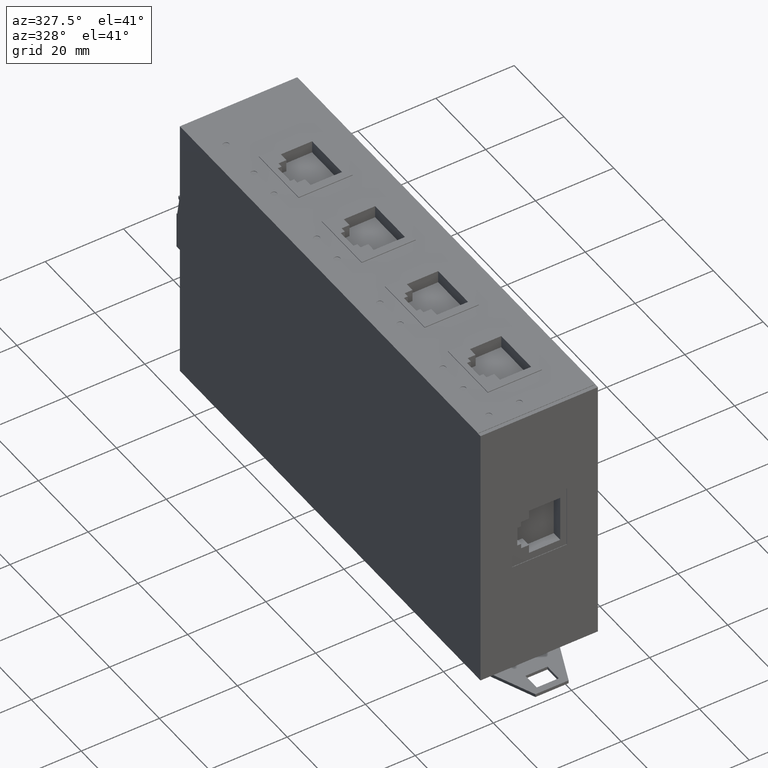
[diagram: clean part render]
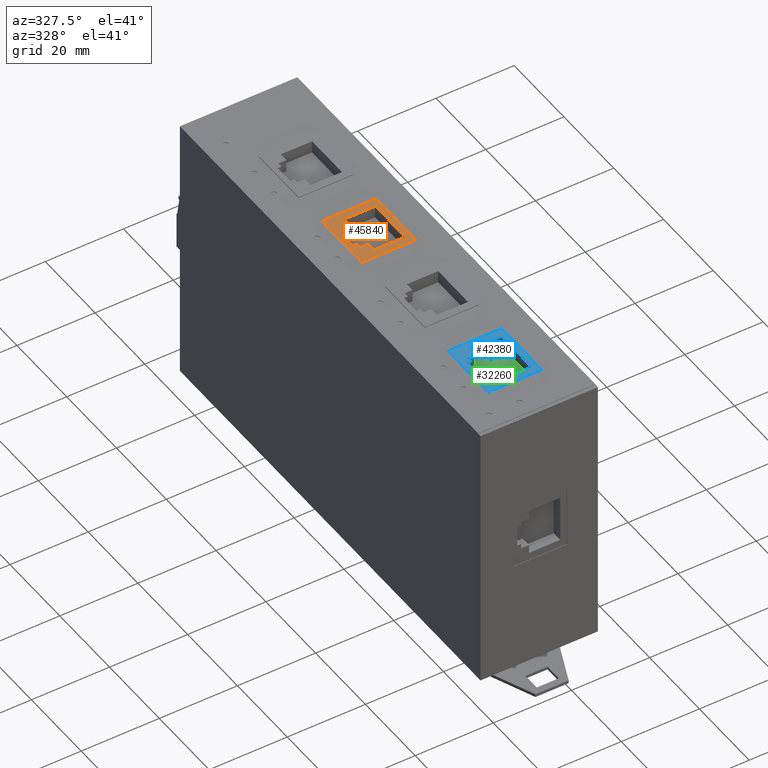
[diagram: same view with three faces highlighted in distinct colors, each labeled with its STEP entity id]
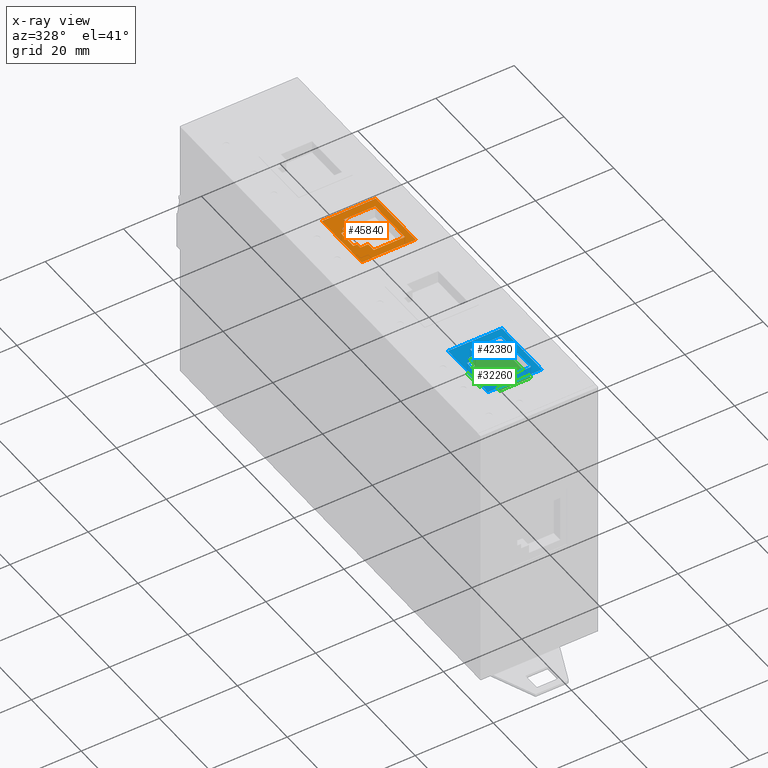
[diagram: x-ray of the same camera — body ghosted, the three highlighted faces saturated]
A machine part, auxiliary view with three faces highlighted in distinct colors.
The next image is the same camera in x-ray (body ghosted, the three faces saturated) — at least one of them is partly hidden behind the body in this view.
Their STEP definitions:

[orange] entity #45840 — the highlighted planar face has unit normal (-0, 0, -1).
#22730=CARTESIAN_POINT('',(-20.4773015873009,9.68789682539686,0.25));
#22740=DIRECTION('',(1.,5.20417042793041E-16,-4.15384957333508E-18));
#22750=VECTOR('',#22740,1.);
#22760=LINE('',#22730,#22750);
#22770=CARTESIAN_POINT('',(-36.7273015873009,9.68789682539685,0.25));
#22780=VERTEX_POINT('',#22770);
#22790=CARTESIAN_POINT('',(-35.7273015873009,9.68789682539685,0.25));
#22800=VERTEX_POINT('',#22790);
#22810=EDGE_CURVE('',#22780,#22800,#22760,.T.);
#23110=CARTESIAN_POINT('',(-36.7273015873009,7.01789682539685,0.25));
#23120=DIRECTION('',(3.46944695195361E-16,1.,1.07852076885685E-32));
#23130=VECTOR('',#23120,1.);
#23140=LINE('',#23110,#23130);
#23150=CARTESIAN_POINT('',(-36.7273015873009,4.68789682539685,0.25));
#23160=VERTEX_POINT('',#23150);
#23170=EDGE_CURVE('',#23160,#22780,#23140,.T.);
#23420=CARTESIAN_POINT('',(-20.4773015873009,4.68789682539684,0.25));
#23430=DIRECTION('',(-1.,3.46944695195361E-16,4.15384957333508E-18));
#23440=VECTOR('',#23430,1.);
#23450=LINE('',#23420,#23440);
#23460=CARTESIAN_POINT('',(-35.7273015873009,4.68789682539685,0.25));
#23470=VERTEX_POINT('',#23460);
#23480=EDGE_CURVE('',#23470,#23160,#23450,.T.);
#23730=CARTESIAN_POINT('',(-35.7273015873009,7.01789682539685,0.25));
#23740=DIRECTION('',(-1.04083408558609E-15,1.,1.6549831985001E-32));
#23750=VECTOR('',#23740,1.);
#23760=LINE('',#23730,#23750);
#23770=CARTESIAN_POINT('',(-35.7273015873009,3.43789682539685,0.25));
#23780=VERTEX_POINT('',#23770);
#23790=EDGE_CURVE('',#23780,#23470,#23760,.T.);
#24040=CARTESIAN_POINT('',(-20.4773015873009,3.43789682539684,0.25));
#24050=DIRECTION('',(-1.,3.46944695195361E-16,4.15384957333508E-18));
#24060=VECTOR('',#24050,1.);
#24070=LINE('',#24040,#24060);
#24080=CARTESIAN_POINT('',(-33.7273015873009,3.43789682539685,0.25));
#24090=VERTEX_POINT('',#24080);
#24100=EDGE_CURVE('',#24090,#23780,#24070,.T.);
#24350=CARTESIAN_POINT('',(-33.7273015873009,7.01789682539685,0.25));
#24360=DIRECTION('',(3.46944695195361E-16,1.,1.07852076885685E-32));
#24370=VECTOR('',#24360,1.);
#24380=LINE('',#24350,#24370);
#24390=CARTESIAN_POINT('',(-33.7273015873009,1.18789682539685,0.25));
#24400=VERTEX_POINT('',#24390);
#24410=EDGE_CURVE('',#24400,#24090,#24380,.T.);
#24660=CARTESIAN_POINT('',(-20.4773015873009,1.18789682539684,0.25));
#24670=DIRECTION('',(-1.,3.46944695195361E-16,4.15384957333508E-18));
#24680=VECTOR('',#24670,1.);
#24690=LINE('',#24660,#24680);
#24700=CARTESIAN_POINT('',(-25.7273015873009,1.18789682539684,0.25));
#24710=VERTEX_POINT('',#24700);
#24720=EDGE_CURVE('',#24710,#24400,#24690,.T.);
#24970=CARTESIAN_POINT('',(-25.7273015873009,7.01789682539685,0.25));
#24980=DIRECTION('',(-2.1350442781253E-16,-1.,-1.13394984863024E-32));
#24990=VECTOR('',#24980,1.);
#25000=LINE('',#24970,#24990);
#25010=CARTESIAN_POINT('',(-25.7273015873009,13.1878968253968,0.25));
#25020=VERTEX_POINT('',#25010);
#25030=EDGE_CURVE('',#25020,#24710,#25000,.T.);
#25280=CARTESIAN_POINT('',(-20.4773015873009,13.1878968253968,0.25));
#25290=DIRECTION('',(1.,-3.46944695195361E-16,-4.15384957333508E-18));
#25300=VECTOR('',#25290,1.);
#25310=LINE('',#25280,#25300);
#25320=CARTESIAN_POINT('',(-33.7273015873009,13.1878968253968,0.25));
#25330=VERTEX_POINT('',#25320);
#25340=EDGE_CURVE('',#25330,#25020,#25310,.T.);
#25590=CARTESIAN_POINT('',(-33.7273015873009,7.01789682539685,0.25));
#25600=DIRECTION('',(3.46944695195361E-16,1.,1.07852076885685E-32));
#25610=VECTOR('',#25600,1.);
#25620=LINE('',#25590,#25610);
#25630=CARTESIAN_POINT('',(-33.7273015873009,10.9378968253968,0.25));
#25640=VERTEX_POINT('',#25630);
#25650=EDGE_CURVE('',#25640,#25330,#25620,.T.);
#25900=CARTESIAN_POINT('',(-20.4773015873009,10.9378968253968,0.25));
#25910=DIRECTION('',(1.,-3.46944695195361E-16,-4.15384957333508E-18));
#25920=VECTOR('',#25910,1.);
#25930=LINE('',#25900,#25920);
#25940=CARTESIAN_POINT('',(-35.7273015873009,10.9378968253968,0.25));
#25950=VERTEX_POINT('',#25940);
#25960=EDGE_CURVE('',#25950,#25640,#25930,.T.);
#26210=CARTESIAN_POINT('',(-35.7273015873009,7.01789682539685,0.25));
#26220=DIRECTION('',(3.46944695195361E-16,1.,1.07852076885685E-32));
#26230=VECTOR('',#26220,1.);
#26240=LINE('',#26210,#26230);
#26250=EDGE_CURVE('',#22800,#25950,#26240,.T.);
#42130=CARTESIAN_POINT('',(-20.4773015873009,24.5178968253968,0.25));
#42140=DIRECTION('',(-4.15384957333508E-18,1.22263637626766E-32,-1.));
#42150=DIRECTION('',(-3.46944695195361E-16,-1.,-1.07852076885685E-32));
#42160=AXIS2_PLACEMENT_3D('',#42130,#42140,#42150);
#42170=PLANE('',#42160);
#42930=CARTESIAN_POINT('',(-38.0773015873009,15.1878968253968,0.25));
#42940=VERTEX_POINT('',#42930);
#42970=CARTESIAN_POINT('',(-38.0773015873009,7.01789682539685,0.25));
#42980=DIRECTION('',(7.35943292838645E-17,-1.,-1.25320635359723E-32));
#42990=VECTOR('',#42980,1.);
#43000=LINE('',#42970,#42990);
#43010=CARTESIAN_POINT('',(-38.0773015873009,-0.812103174603154,0.25));
#43020=VERTEX_POINT('',#43010);
#43030=EDGE_CURVE('',#42940,#43020,#43000,.T.);
#43660=CARTESIAN_POINT('',(-20.4773015873009,-0.81210317460316,0.25));
#43670=DIRECTION('',(1.,-3.46944695195361E-16,-4.15384957333508E-18));
#43680=VECTOR('',#43670,1.);
#43690=LINE('',#43660,#43680);
#43700=CARTESIAN_POINT('',(-24.2773015873009,-0.812103174603159,0.25));
#43710=VERTEX_POINT('',#43700);
#43720=EDGE_CURVE('',#43020,#43710,#43690,.T.);
#45520=CARTESIAN_POINT('',(-20.4773015873009,15.1878968253968,0.25));
#45530=DIRECTION('',(-1.,3.46944695195361E-16,4.15384957333508E-18));
#45540=VECTOR('',#45530,1.);
#45550=LINE('',#45520,#45540);
#45560=CARTESIAN_POINT('',(-24.2773015873009,15.1878968253968,0.25));
#45570=VERTEX_POINT('',#45560);
#45580=EDGE_CURVE('',#45570,#42940,#45550,.T.);
#45590=ORIENTED_EDGE('',*,*,#45580,.T.);
#45600=CARTESIAN_POINT('',(-24.2773015873009,7.01789682539685,0.25));
#45610=DIRECTION('',(3.46944695195361E-16,1.,1.07852076885685E-32));
#45620=VECTOR('',#45610,1.);
#45630=LINE('',#45600,#45620);
#45640=EDGE_CURVE('',#43710,#45570,#45630,.T.);
#45650=ORIENTED_EDGE('',*,*,#45640,.T.);
#45660=ORIENTED_EDGE('',*,*,#43720,.T.);
#45670=ORIENTED_EDGE('',*,*,#43030,.T.);
#45680=EDGE_LOOP('',(#45670,#45660,#45650,#45590));
#45690=FACE_OUTER_BOUND('',#45680,.T.);
#45700=ORIENTED_EDGE('',*,*,#23480,.T.);
#45710=ORIENTED_EDGE('',*,*,#23790,.T.);
#45720=ORIENTED_EDGE('',*,*,#24100,.T.);
#45730=ORIENTED_EDGE('',*,*,#24410,.T.);
#45740=ORIENTED_EDGE('',*,*,#24720,.T.);
#45750=ORIENTED_EDGE('',*,*,#25030,.T.);
#45760=ORIENTED_EDGE('',*,*,#25340,.T.);
#45770=ORIENTED_EDGE('',*,*,#25650,.T.);
#45780=ORIENTED_EDGE('',*,*,#25960,.T.);
#45790=ORIENTED_EDGE('',*,*,#26250,.T.);
#45800=ORIENTED_EDGE('',*,*,#22810,.T.);
#45810=ORIENTED_EDGE('',*,*,#23170,.T.);
#45820=EDGE_LOOP('',(#45810,#45800,#45790,#45780,#45770,#45760,#45750,
#45740,#45730,#45720,#45710,#45700));
#45830=FACE_BOUND('',#45820,.T.);
#45840=ADVANCED_FACE('',(#45690,#45830),#42170,.F.);

[blue] entity #42380 — the highlighted planar face has unit normal (-0, 0, -1).
#32390=CARTESIAN_POINT('',(-20.4773015873009,-37.4721031746032,0.25));
#32400=DIRECTION('',(1.,-3.46944695195361E-16,-4.15384957333508E-18));
#32410=VECTOR('',#32400,1.);
#32420=LINE('',#32390,#32410);
#32430=CARTESIAN_POINT('',(-33.7273015873009,-37.4721031746031,0.25));
#32440=VERTEX_POINT('',#32430);
#32450=CARTESIAN_POINT('',(-25.7273015873009,-37.4721031746032,0.25));
#32460=VERTEX_POINT('',#32450);
#32470=EDGE_CURVE('',#32440,#32460,#32420,.T.);
#32770=CARTESIAN_POINT('',(-33.7273015873009,7.01789682539685,0.25));
#32780=DIRECTION('',(3.46944695195361E-16,1.,1.07852076885685E-32));
#32790=VECTOR('',#32780,1.);
#32800=LINE('',#32770,#32790);
#32810=CARTESIAN_POINT('',(-33.7273015873009,-39.7221031746031,0.25));
#32820=VERTEX_POINT('',#32810);
#32830=EDGE_CURVE('',#32820,#32440,#32800,.T.);
#33080=CARTESIAN_POINT('',(-20.4773015873009,-39.7221031746031,0.25));
#33090=DIRECTION('',(1.,-3.46944695195361E-16,-4.15384957333508E-18));
#33100=VECTOR('',#33090,1.);
#33110=LINE('',#33080,#33100);
#33120=CARTESIAN_POINT('',(-35.7273015873009,-39.7221031746031,0.25));
#33130=VERTEX_POINT('',#33120);
#33140=EDGE_CURVE('',#33130,#32820,#33110,.T.);
#33390=CARTESIAN_POINT('',(-35.7273015873009,7.01789682539685,0.25));
#33400=DIRECTION('',(3.46944695195361E-16,1.,1.07852076885685E-32));
#33410=VECTOR('',#33400,1.);
#33420=LINE('',#33390,#33410);
#33430=CARTESIAN_POINT('',(-35.7273015873009,-40.9721031746031,0.25));
#33440=VERTEX_POINT('',#33430);
#33450=EDGE_CURVE('',#33440,#33130,#33420,.T.);
#33700=CARTESIAN_POINT('',(-20.4773015873009,-40.9721031746031,0.25));
#33710=DIRECTION('',(1.,5.20417042793041E-16,-4.15384957333508E-18));
#33720=VECTOR('',#33710,1.);
#33730=LINE('',#33700,#33720);
#33740=CARTESIAN_POINT('',(-36.7273015873009,-40.9721031746031,0.25));
#33750=VERTEX_POINT('',#33740);
#33760=EDGE_CURVE('',#33750,#33440,#33730,.T.);
#34010=CARTESIAN_POINT('',(-36.7273015873009,7.01789682539685,0.25));
#34020=DIRECTION('',(3.46944695195361E-16,1.,1.07852076885685E-32));
#34030=VECTOR('',#34020,1.);
#34040=LINE('',#34010,#34030);
#34050=CARTESIAN_POINT('',(-36.7273015873009,-45.9721031746031,0.25));
#34060=VERTEX_POINT('',#34050);
#34070=EDGE_CURVE('',#34060,#33750,#34040,.T.);
#34320=CARTESIAN_POINT('',(-20.4773015873009,-45.9721031746031,0.25));
#34330=DIRECTION('',(-1.,3.46944695195361E-16,4.15384957333508E-18));
#34340=VECTOR('',#34330,1.);
#34350=LINE('',#34320,#34340);
#34360=CARTESIAN_POINT('',(-35.7273015873009,-45.9721031746031,0.25));
#34370=VERTEX_POINT('',#34360);
#34380=EDGE_CURVE('',#34370,#34060,#34350,.T.);
#34630=CARTESIAN_POINT('',(-35.727301587301,7.01789682539685,0.25));
#34640=DIRECTION('',(-1.04083408558609E-15,1.,1.6549831985001E-32));
#34650=VECTOR('',#34640,1.);
#34660=LINE('',#34630,#34650);
#34670=CARTESIAN_POINT('',(-35.7273015873009,-47.2221031746031,0.25));
#34680=VERTEX_POINT('',#34670);
#34690=EDGE_CURVE('',#34680,#34370,#34660,.T.);
#34940=CARTESIAN_POINT('',(-20.4773015873009,-47.2221031746031,0.25));
#34950=DIRECTION('',(-1.,3.46944695195361E-16,4.15384957333508E-18));
#34960=VECTOR('',#34950,1.);
#34970=LINE('',#34940,#34960);
#34980=CARTESIAN_POINT('',(-33.7273015873009,-47.2221031746031,0.25));
#34990=VERTEX_POINT('',#34980);
#35000=EDGE_CURVE('',#34990,#34680,#34970,.T.);
#35250=CARTESIAN_POINT('',(-33.7273015873009,7.01789682539685,0.25));
#35260=DIRECTION('',(3.46944695195361E-16,1.,1.07852076885685E-32));
#35270=VECTOR('',#35260,1.);
#35280=LINE('',#35250,#35270);
#35290=CARTESIAN_POINT('',(-33.7273015873009,-49.4721031746031,0.25));
#35300=VERTEX_POINT('',#35290);
#35310=EDGE_CURVE('',#35300,#34990,#35280,.T.);
#35560=CARTESIAN_POINT('',(-20.4773015873009,-49.4721031746031,0.25));
#35570=DIRECTION('',(-1.,3.46944695195361E-16,4.15384957333508E-18));
#35580=VECTOR('',#35570,1.);
#35590=LINE('',#35560,#35580);
#35600=CARTESIAN_POINT('',(-25.7273015873009,-49.4721031746031,0.25));
#35610=VERTEX_POINT('',#35600);
#35620=EDGE_CURVE('',#35610,#35300,#35590,.T.);
#35870=CARTESIAN_POINT('',(-25.7273015873009,7.01789682539685,0.25));
#35880=DIRECTION('',(-2.1350442781253E-16,-1.,-1.13394984863024E-32));
#35890=VECTOR('',#35880,1.);
#35900=LINE('',#35870,#35890);
#35910=EDGE_CURVE('',#32460,#35610,#35900,.T.);
#40980=CARTESIAN_POINT('',(-38.0773015873009,-35.4721031746031,0.25));
#40990=VERTEX_POINT('',#40980);
#41020=CARTESIAN_POINT('',(-38.0773015873009,7.01789682539685,0.25));
#41030=DIRECTION('',(7.35943292838645E-17,-1.,-1.25320635359723E-32));
#41040=VECTOR('',#41030,1.);
#41050=LINE('',#41020,#41040);
#41060=CARTESIAN_POINT('',(-38.0773015873009,-51.4721031746031,0.25));
#41070=VERTEX_POINT('',#41060);
#41080=EDGE_CURVE('',#40990,#41070,#41050,.T.);
#41330=CARTESIAN_POINT('',(-20.477301587301,-51.4721031746031,0.25));
#41340=DIRECTION('',(1.,-3.46944695195361E-16,-4.15384957333508E-18));
#41350=VECTOR('',#41340,1.);
#41360=LINE('',#41330,#41350);
#41370=CARTESIAN_POINT('',(-24.2773015873009,-51.4721031746031,0.25));
#41380=VERTEX_POINT('',#41370);
#41390=EDGE_CURVE('',#41070,#41380,#41360,.T.);
#41640=CARTESIAN_POINT('',(-24.2773015873009,7.01789682539685,0.25));
#41650=DIRECTION('',(3.46944695195361E-16,1.,1.07852076885685E-32));
#41660=VECTOR('',#41650,1.);
#41670=LINE('',#41640,#41660);
#41680=CARTESIAN_POINT('',(-24.2773015873009,-35.4721031746031,0.25));
#41690=VERTEX_POINT('',#41680);
#41700=EDGE_CURVE('',#41380,#41690,#41670,.T.);
#41950=CARTESIAN_POINT('',(-20.4773015873009,-35.4721031746031,0.25));
#41960=DIRECTION('',(-1.,3.46944695195361E-16,4.15384957333508E-18));
#41970=VECTOR('',#41960,1.);
#41980=LINE('',#41950,#41970);
#41990=EDGE_CURVE('',#41690,#40990,#41980,.T.);
#42130=CARTESIAN_POINT('',(-20.4773015873009,24.5178968253968,0.25));
#42140=DIRECTION('',(-4.15384957333508E-18,1.22263637626766E-32,-1.));
#42150=DIRECTION('',(-3.46944695195361E-16,-1.,-1.07852076885685E-32));
#42160=AXIS2_PLACEMENT_3D('',#42130,#42140,#42150);
#42170=PLANE('',#42160);
#42180=ORIENTED_EDGE('',*,*,#41990,.T.);
#42190=ORIENTED_EDGE('',*,*,#41700,.T.);
#42200=ORIENTED_EDGE('',*,*,#41390,.T.);
#42210=ORIENTED_EDGE('',*,*,#41080,.T.);
#42220=EDGE_LOOP('',(#42210,#42200,#42190,#42180));
#42230=FACE_OUTER_BOUND('',#42220,.T.);
#42240=ORIENTED_EDGE('',*,*,#34380,.T.);
#42250=ORIENTED_EDGE('',*,*,#34690,.T.);
#42260=ORIENTED_EDGE('',*,*,#35000,.T.);
#42270=ORIENTED_EDGE('',*,*,#35310,.T.);
#42280=ORIENTED_EDGE('',*,*,#35620,.T.);
#42290=ORIENTED_EDGE('',*,*,#35910,.T.);
#42300=ORIENTED_EDGE('',*,*,#32470,.T.);
#42310=ORIENTED_EDGE('',*,*,#32830,.T.);
#42320=ORIENTED_EDGE('',*,*,#33140,.T.);
#42330=ORIENTED_EDGE('',*,*,#33450,.T.);
#42340=ORIENTED_EDGE('',*,*,#33760,.T.);
#42350=ORIENTED_EDGE('',*,*,#34070,.T.);
#42360=EDGE_LOOP('',(#42350,#42340,#42330,#42320,#42310,#42300,#42290,
#42280,#42270,#42260,#42250,#42240));
#42370=FACE_BOUND('',#42360,.T.);
#42380=ADVANCED_FACE('',(#42230,#42370),#42170,.F.);

[green] entity #32260 — the highlighted planar face has unit normal (0, 0, 1).
#31230=CARTESIAN_POINT('',(-32.0223015873009,-2.22710317460317,-2.8984))
;
#31240=DIRECTION('',(0.,0.,1.));
#31250=DIRECTION('',(1.,0.,0.));
#31260=AXIS2_PLACEMENT_3D('',#31230,#31240,#31250);
#31270=PLANE('',#31260);
#31280=CARTESIAN_POINT('',(-36.7273015873009,0.,-2.8984));
#31290=DIRECTION('',(-3.46944695195361E-16,-1.,0.));
#31300=VECTOR('',#31290,1.);
#31310=LINE('',#31280,#31300);
#31320=CARTESIAN_POINT('',(-36.7273015873009,-40.9721031746031,-2.8984))
;
#31330=VERTEX_POINT('',#31320);
#31340=CARTESIAN_POINT('',(-36.7273015873009,-45.9721031746031,-2.8984))
;
#31350=VERTEX_POINT('',#31340);
#31360=EDGE_CURVE('',#31330,#31350,#31310,.T.);
#31370=ORIENTED_EDGE('',*,*,#31360,.T.);
#31380=CARTESIAN_POINT('',(0.,-40.9721031746031,-2.8984));
#31390=DIRECTION('',(-1.,-5.20417042793041E-16,0.));
#31400=VECTOR('',#31390,1.);
#31410=LINE('',#31380,#31400);
#31420=CARTESIAN_POINT('',(-35.7273015873009,-40.9721031746031,-2.8984))
;
#31430=VERTEX_POINT('',#31420);
#31440=EDGE_CURVE('',#31430,#31330,#31410,.T.);
#31450=ORIENTED_EDGE('',*,*,#31440,.T.);
#31460=CARTESIAN_POINT('',(-35.7273015873009,0.,-2.8984));
#31470=DIRECTION('',(-3.46944695195361E-16,-1.,0.));
#31480=VECTOR('',#31470,1.);
#31490=LINE('',#31460,#31480);
#31500=CARTESIAN_POINT('',(-35.7273015873009,-39.7221031746031,-2.8984))
;
#31510=VERTEX_POINT('',#31500);
#31520=EDGE_CURVE('',#31510,#31430,#31490,.T.);
#31530=ORIENTED_EDGE('',*,*,#31520,.T.);
#31540=CARTESIAN_POINT('',(0.,-39.7221031746032,-2.8984));
#31550=DIRECTION('',(-1.,3.46944695195361E-16,0.));
#31560=VECTOR('',#31550,1.);
#31570=LINE('',#31540,#31560);
#31580=CARTESIAN_POINT('',(-33.7273015873009,-39.7221031746031,-2.8984))
;
#31590=VERTEX_POINT('',#31580);
#31600=EDGE_CURVE('',#31590,#31510,#31570,.T.);
#31610=ORIENTED_EDGE('',*,*,#31600,.T.);
#31620=CARTESIAN_POINT('',(-33.7273015873009,0.,-2.8984));
#31630=DIRECTION('',(-3.46944695195361E-16,-1.,0.));
#31640=VECTOR('',#31630,1.);
#31650=LINE('',#31620,#31640);
#31660=CARTESIAN_POINT('',(-33.7273015873009,-37.4721031746031,-2.8984))
;
#31670=VERTEX_POINT('',#31660);
#31680=EDGE_CURVE('',#31670,#31590,#31650,.T.);
#31690=ORIENTED_EDGE('',*,*,#31680,.T.);
#31700=CARTESIAN_POINT('',(0.,-37.4721031746032,-2.8984));
#31710=DIRECTION('',(-1.,3.46944695195361E-16,0.));
#31720=VECTOR('',#31710,1.);
#31730=LINE('',#31700,#31720);
#31740=CARTESIAN_POINT('',(-25.7273015873009,-37.4721031746031,-2.8984))
;
#31750=VERTEX_POINT('',#31740);
#31760=EDGE_CURVE('',#31750,#31670,#31730,.T.);
#31770=ORIENTED_EDGE('',*,*,#31760,.T.);
#31780=CARTESIAN_POINT('',(-25.7273015873009,0.,-2.8984));
#31790=DIRECTION('',(2.1350442781253E-16,1.,0.));
#31800=VECTOR('',#31790,1.);
#31810=LINE('',#31780,#31800);
#31820=CARTESIAN_POINT('',(-25.7273015873009,-49.4721031746031,-2.8984))
;
#31830=VERTEX_POINT('',#31820);
#31840=EDGE_CURVE('',#31830,#31750,#31810,.T.);
#31850=ORIENTED_EDGE('',*,*,#31840,.T.);
#31860=CARTESIAN_POINT('',(0.,-49.4721031746031,-2.8984));
#31870=DIRECTION('',(1.,-3.46944695195361E-16,0.));
#31880=VECTOR('',#31870,1.);
#31890=LINE('',#31860,#31880);
#31900=CARTESIAN_POINT('',(-33.7273015873009,-49.4721031746031,-2.8984))
;
#31910=VERTEX_POINT('',#31900);
#31920=EDGE_CURVE('',#31910,#31830,#31890,.T.);
#31930=ORIENTED_EDGE('',*,*,#31920,.T.);
#31940=CARTESIAN_POINT('',(-33.7273015873009,0.,-2.8984));
#31950=DIRECTION('',(-3.46944695195361E-16,-1.,0.));
#31960=VECTOR('',#31950,1.);
#31970=LINE('',#31940,#31960);
#31980=CARTESIAN_POINT('',(-33.7273015873009,-47.2221031746031,-2.8984))
;
#31990=VERTEX_POINT('',#31980);
#32000=EDGE_CURVE('',#31990,#31910,#31970,.T.);
#32010=ORIENTED_EDGE('',*,*,#32000,.T.);
#32020=CARTESIAN_POINT('',(0.,-47.2221031746032,-2.8984));
#32030=DIRECTION('',(1.,-3.46944695195361E-16,0.));
#32040=VECTOR('',#32030,1.);
#32050=LINE('',#32020,#32040);
#32060=CARTESIAN_POINT('',(-35.7273015873009,-47.2221031746031,-2.8984))
;
#32070=VERTEX_POINT('',#32060);
#32080=EDGE_CURVE('',#32070,#31990,#32050,.T.);
#32090=ORIENTED_EDGE('',*,*,#32080,.T.);
#32100=CARTESIAN_POINT('',(-35.727301587301,0.,-2.8984));
#32110=DIRECTION('',(1.04083408558609E-15,-1.,0.));
#32120=VECTOR('',#32110,1.);
#32130=LINE('',#32100,#32120);
#32140=CARTESIAN_POINT('',(-35.7273015873009,-45.9721031746031,-2.8984))
;
#32150=VERTEX_POINT('',#32140);
#32160=EDGE_CURVE('',#32150,#32070,#32130,.T.);
#32170=ORIENTED_EDGE('',*,*,#32160,.T.);
#32180=CARTESIAN_POINT('',(0.,-45.9721031746032,-2.8984));
#32190=DIRECTION('',(1.,-3.46944695195361E-16,0.));
#32200=VECTOR('',#32190,1.);
#32210=LINE('',#32180,#32200);
#32220=EDGE_CURVE('',#31350,#32150,#32210,.T.);
#32230=ORIENTED_EDGE('',*,*,#32220,.T.);
#32240=EDGE_LOOP('',(#32230,#32170,#32090,#32010,#31930,#31850,#31770,
#31690,#31610,#31530,#31450,#31370));
#32250=FACE_OUTER_BOUND('',#32240,.T.);
#32260=ADVANCED_FACE('',(#32250),#31270,.T.);